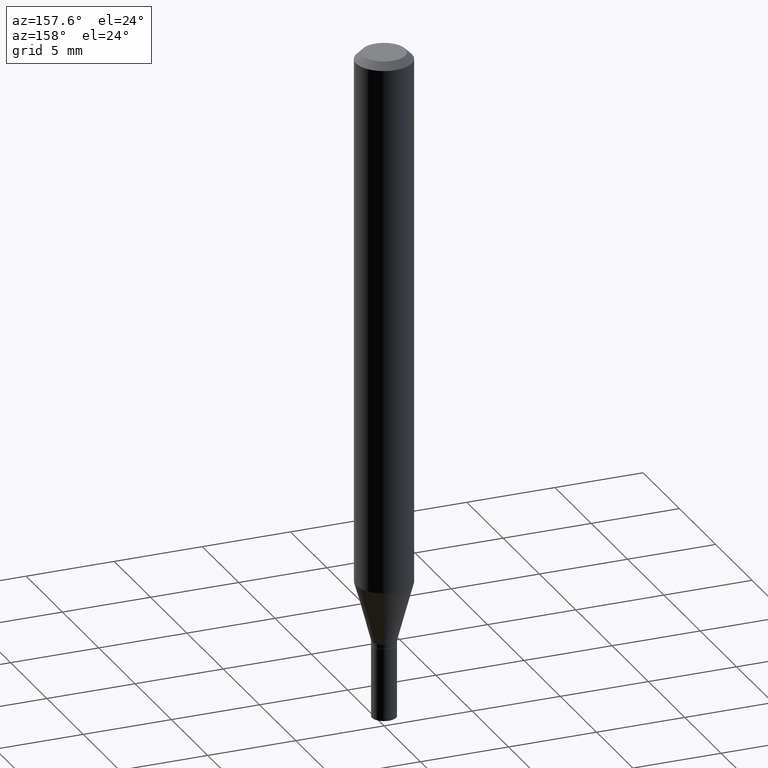
[diagram: clean part render]
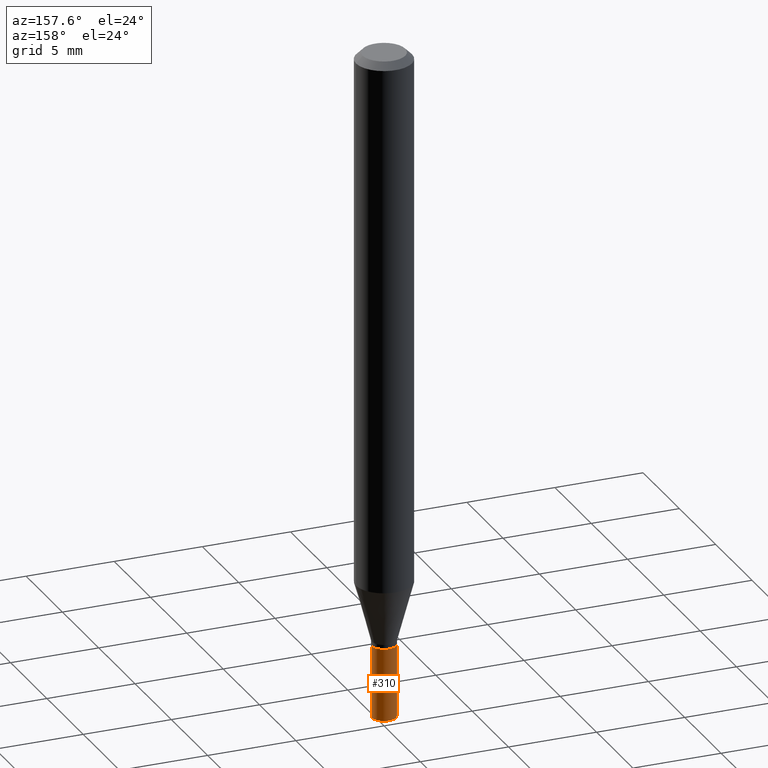
[diagram: same view with one face highlighted and labeled with its STEP entity id]
A machine part, auxiliary view. The second image highlights one B-rep face of the part: STEP entity #310.
In plain terms, the highlighted cylindrical surface (edge-blend (fillet) strip) has radius 0.6858 mm, axis along (-0, 0, 1).
Its self-contained STEP definition (entity closure, byte-faithful):
#3 = AXIS2_PLACEMENT_3D ( 'NONE', #343, #32, #169 ) ;
#17 = LINE ( 'NONE', #53, #154 ) ;
#32 = DIRECTION ( 'NONE',  ( -2.445468806185136597E-29, 3.491481338843145583E-15, 1.000000000000000000 ) ) ;
#35 = DIRECTION ( 'NONE',  ( -2.445468806185136597E-29, 3.491481338843145583E-15, 1.000000000000000000 ) ) ;
#49 = CARTESIAN_POINT ( 'NONE',  ( -0.02699999999999999969, -4.762565481163196334E-15, -1.338000000000000078 ) ) ;
#52 = VECTOR ( 'NONE', #345, 39.37007874015748143 ) ;
#53 = CARTESIAN_POINT ( 'NONE',  ( 0.02699999999999999969, -1.885399922975291894E-16, 1.316567729464902510E-30 ) ) ;
#61 = FACE_OUTER_BOUND ( 'NONE', #365, .T. ) ;
#63 = VERTEX_POINT ( 'NONE', #49 ) ;
#65 = EDGE_CURVE ( 'NONE', #159, #428, #17, .T. ) ;
#68 = DIRECTION ( 'NONE',  ( 1.000000000000000000, -6.982962677686261189E-15, 0.000000000000000000 ) ) ;
#93 = CARTESIAN_POINT ( 'NONE',  ( -0.02699999999999999969, -4.762565481163196334E-15, -1.500000000000000222 ) ) ;
#100 = VERTEX_POINT ( 'NONE', #93 ) ;
#143 = AXIS2_PLACEMENT_3D ( 'NONE', #292, #368, #68 ) ;
#154 = VECTOR ( 'NONE', #230, 39.37007874015748143 ) ;
#159 = VERTEX_POINT ( 'NONE', #409 ) ;
#169 = DIRECTION ( 'NONE',  ( 1.000000000000000000, -6.982962677686261189E-15, 0.000000000000000000 ) ) ;
#170 = EDGE_CURVE ( 'NONE', #159, #100, #234, .T. ) ;
#174 = ORIENTED_EDGE ( 'NONE', *, *, #65, .F. ) ;
#197 = EDGE_CURVE ( 'NONE', #428, #63, #273, .T. ) ;
#230 = DIRECTION ( 'NONE',  ( -2.445468806185136877E-29, 3.491481338843145188E-15, 1.000000000000000000 ) ) ;
#234 = CIRCLE ( 'NONE', #3, 0.02699999999999999969 ) ;
#251 = CARTESIAN_POINT ( 'NONE',  ( 0.02699999999999999969, -4.860142023669657629E-15, -1.338000000000000078 ) ) ;
#273 = CIRCLE ( 'NONE', #143, 0.02699999999999999969 ) ;
#278 = LINE ( 'NONE', #342, #52 ) ;
#292 = CARTESIAN_POINT ( 'NONE',  ( 3.272037262675712888E-29, -4.671602031372128143E-15, -1.338000000000000078 ) ) ;
#310 = ADVANCED_FACE ( 'NONE', ( #61 ), #375, .T. ) ;
#332 = ORIENTED_EDGE ( 'NONE', *, *, #335, .T. ) ;
#335 = EDGE_CURVE ( 'NONE', #100, #63, #278, .T. ) ;
#342 = CARTESIAN_POINT ( 'NONE',  ( -0.02699999999999999969, 1.918465386552270480E-16, -1.328112474368824466E-30 ) ) ;
#343 = CARTESIAN_POINT ( 'NONE',  ( 3.668203209277704895E-29, -5.237222008264718177E-15, -1.500000000000000222 ) ) ;
#345 = DIRECTION ( 'NONE',  ( -2.445468806185136877E-29, 3.491481338843145188E-15, 1.000000000000000000 ) ) ;
#365 = EDGE_LOOP ( 'NONE', ( #454, #332, #451, #174 ) ) ;
#368 = DIRECTION ( 'NONE',  ( -2.445468806185136597E-29, 3.491481338843145583E-15, 1.000000000000000000 ) ) ;
#375 = CYLINDRICAL_SURFACE ( 'NONE', #443, 0.02699999999999999969 ) ;
#409 = CARTESIAN_POINT ( 'NONE',  ( 0.02699999999999999969, -5.425762000562247662E-15, -1.500000000000000222 ) ) ;
#412 = CARTESIAN_POINT ( 'NONE',  ( 0.000000000000000000, 0.000000000000000000, 0.000000000000000000 ) ) ;
#428 = VERTEX_POINT ( 'NONE', #251 ) ;
#443 = AXIS2_PLACEMENT_3D ( 'NONE', #412, #35, #465 ) ;
#451 = ORIENTED_EDGE ( 'NONE', *, *, #197, .F. ) ;
#454 = ORIENTED_EDGE ( 'NONE', *, *, #170, .T. ) ;
#465 = DIRECTION ( 'NONE',  ( 1.000000000000000000, -6.982962677686266711E-15, 4.876176775795935232E-29 ) ) ;